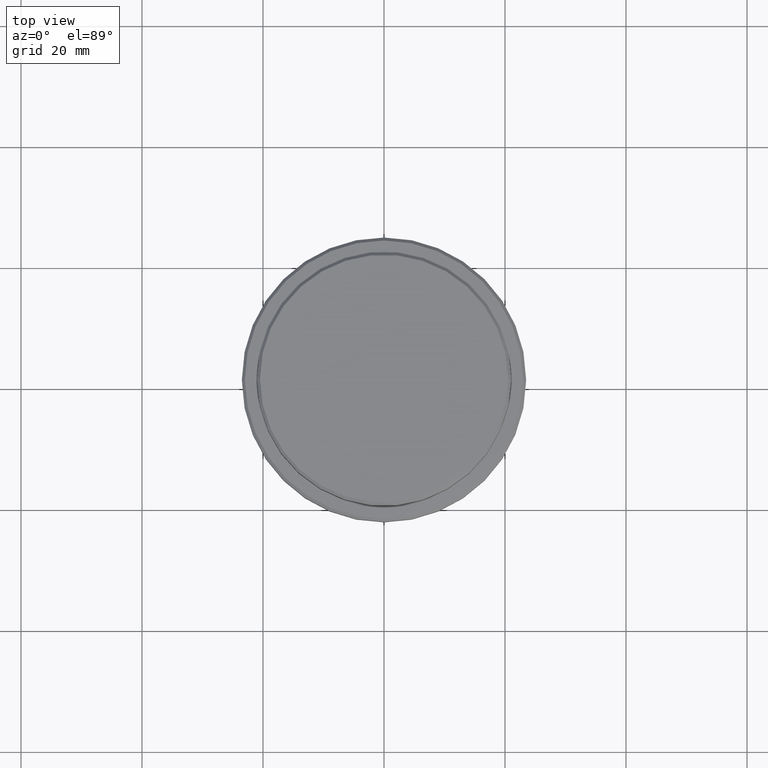
[diagram: clean part render]
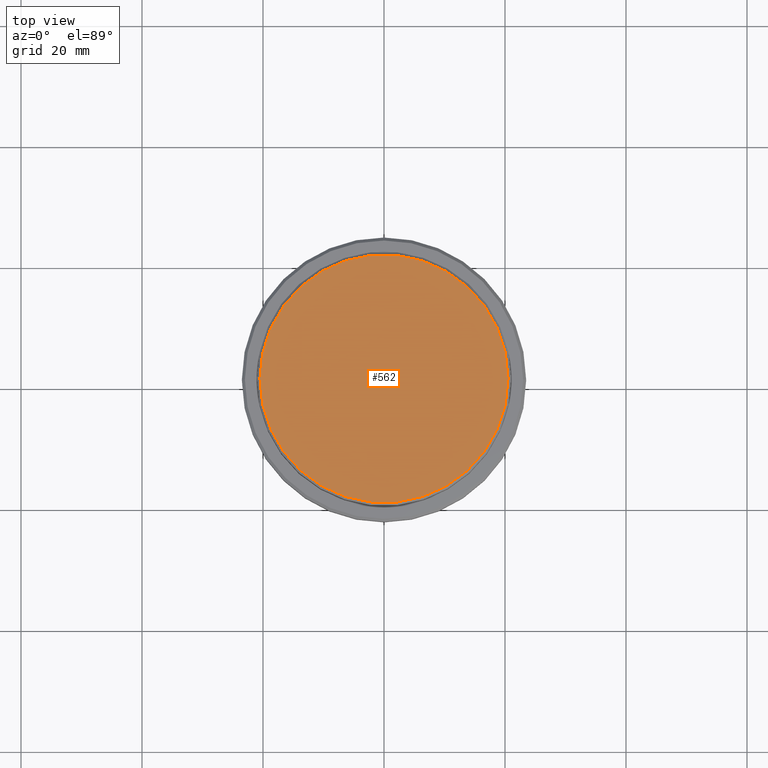
[diagram: same view with one face highlighted and labeled with its STEP entity id]
A machine part, top view. The second image highlights one B-rep face of the part: STEP entity #562.
In plain terms, the highlighted planar face has unit normal (0, -0, 1).
Its self-contained STEP definition (entity closure, byte-faithful):
#51 = CARTESIAN_POINT ( 'NONE',  ( 0.000000000000000000, 0.000000000000000000, 0.000000000000000000 ) ) ;
#76 = FACE_OUTER_BOUND ( 'NONE', #114, .T. ) ;
#114 = EDGE_LOOP ( 'NONE', ( #210, #1388 ) ) ;
#179 = PLANE ( 'NONE',  #1229 ) ;
#200 = CIRCLE ( 'NONE', #265, 20.49999999999997513 ) ;
#210 = ORIENTED_EDGE ( 'NONE', *, *, #1104, .T. ) ;
#265 = AXIS2_PLACEMENT_3D ( 'NONE', #873, #866, #1403 ) ;
#276 = DIRECTION ( 'NONE',  ( 1.000000000000000000, 0.000000000000000000, 0.000000000000000000 ) ) ;
#446 = DIRECTION ( 'NONE',  ( 1.000000000000000000, 0.000000000000000000, 0.000000000000000000 ) ) ;
#562 = ADVANCED_FACE ( 'NONE', ( #76 ), #179, .T. ) ;
#708 = AXIS2_PLACEMENT_3D ( 'NONE', #51, #982, #446 ) ;
#724 = DIRECTION ( 'NONE',  ( 0.000000000000000000, -0.000000000000000000, 1.000000000000000000 ) ) ;
#866 = DIRECTION ( 'NONE',  ( -0.000000000000000000, -0.000000000000000000, 1.000000000000000000 ) ) ;
#873 = CARTESIAN_POINT ( 'NONE',  ( 0.000000000000000000, 0.000000000000000000, 0.000000000000000000 ) ) ;
#884 = CIRCLE ( 'NONE', #708, 20.49999999999997513 ) ;
#982 = DIRECTION ( 'NONE',  ( -0.000000000000000000, -0.000000000000000000, 1.000000000000000000 ) ) ;
#1104 = EDGE_CURVE ( 'NONE', #1305, #1264, #884, .T. ) ;
#1139 = CARTESIAN_POINT ( 'NONE',  ( 20.49999999999997513, 2.541142108230756691E-15, 0.000000000000000000 ) ) ;
#1151 = CARTESIAN_POINT ( 'NONE',  ( -20.49999999999997513, 0.000000000000000000, 0.000000000000000000 ) ) ;
#1229 = AXIS2_PLACEMENT_3D ( 'NONE', #1389, #724, #276 ) ;
#1264 = VERTEX_POINT ( 'NONE', #1139 ) ;
#1305 = VERTEX_POINT ( 'NONE', #1151 ) ;
#1361 = EDGE_CURVE ( 'NONE', #1264, #1305, #200, .T. ) ;
#1388 = ORIENTED_EDGE ( 'NONE', *, *, #1361, .T. ) ;
#1389 = CARTESIAN_POINT ( 'NONE',  ( 0.000000000000000000, 0.000000000000000000, 0.000000000000000000 ) ) ;
#1403 = DIRECTION ( 'NONE',  ( 1.000000000000000000, 0.000000000000000000, 0.000000000000000000 ) ) ;